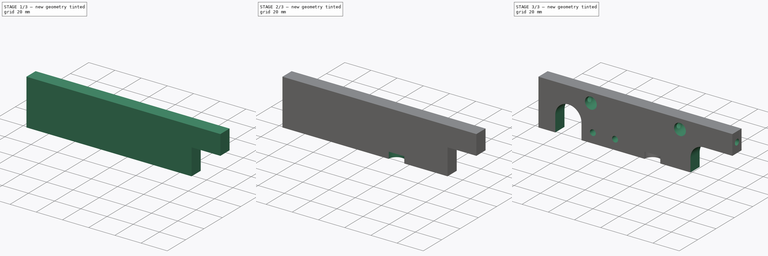
[diagram: build sequence overview — one tinted view per stage of 3, left to right]
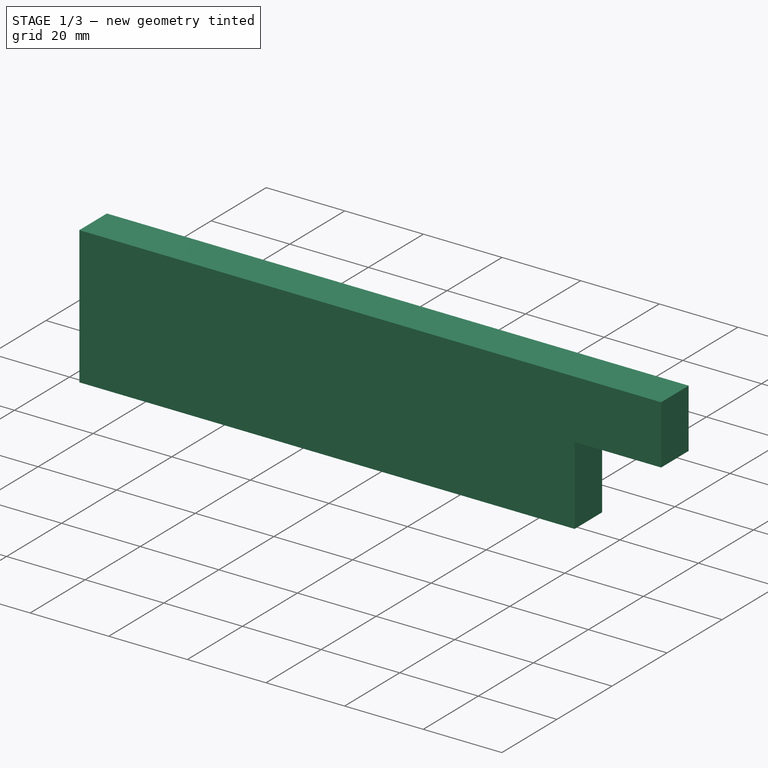
[diagram: stage 1 of 3 — iso view after this stage's code; geometry added in this stage tinted green]
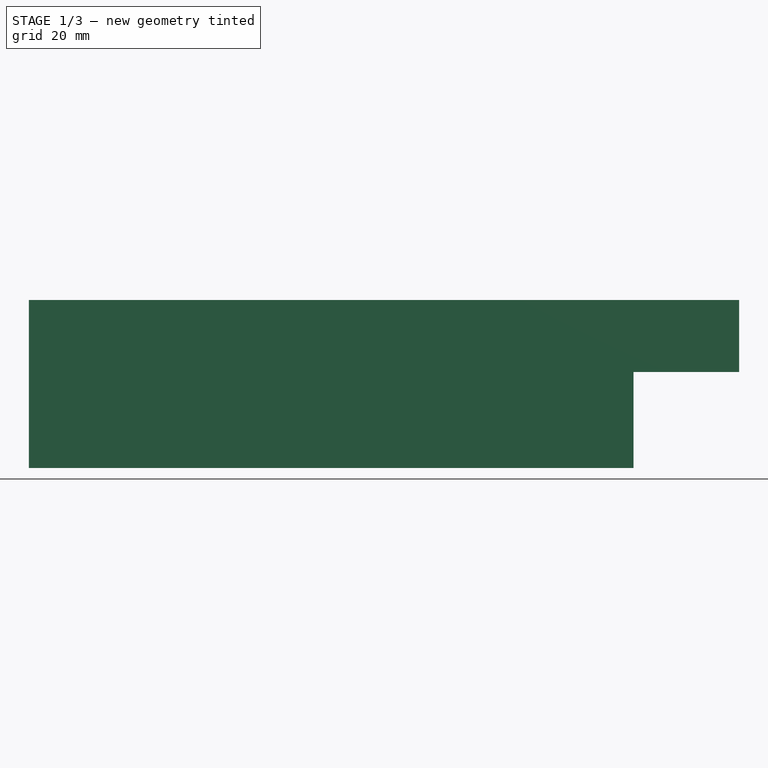
[diagram: stage 1 of 3 — front view after this stage's code; geometry added in this stage tinted green]
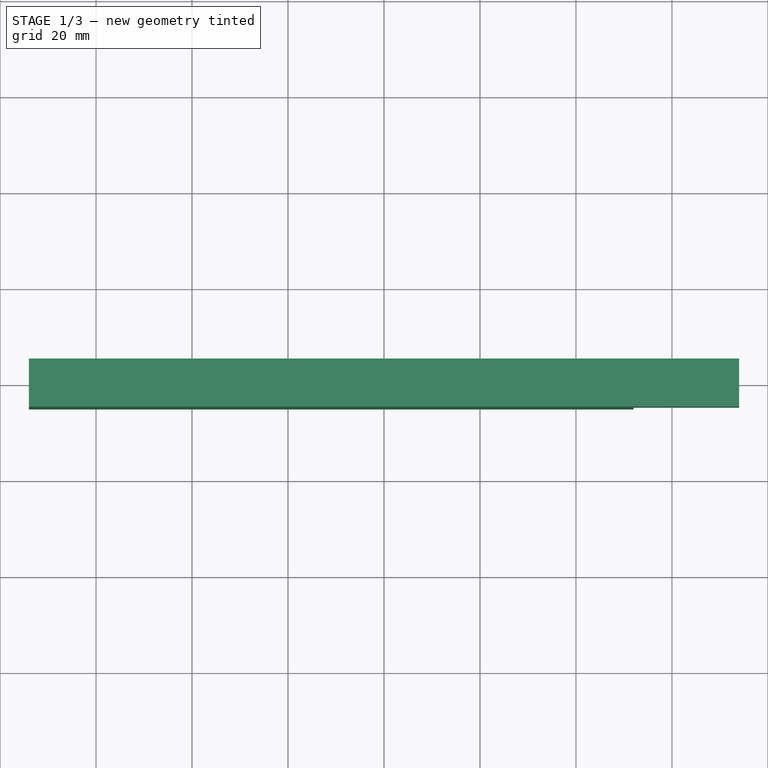
[diagram: stage 1 of 3 — top view after this stage's code; geometry added in this stage tinted green]
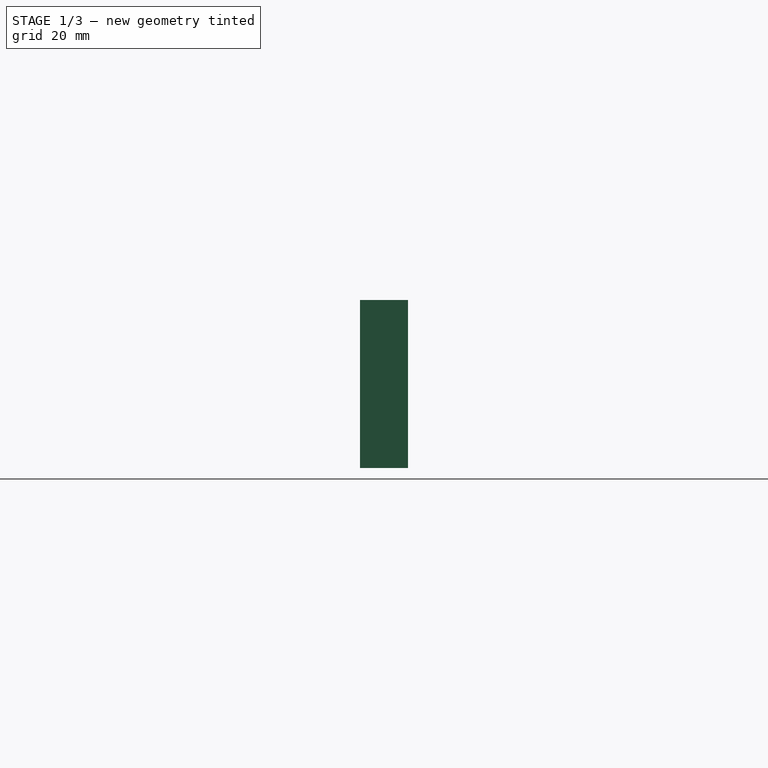
[diagram: stage 1 of 3 — right view after this stage's code; geometry added in this stage tinted green]
FCSTD DOCUMENT  (FreeCAD 0.16R6705 (Git))
Label: Tisch X-Achse - Seitenwand
License: All rights reserved
LicenseURL: http://en.wikipedia.org/wiki/All_rights_reserved
objects: Drawing::FeatureView×32, Sketcher::SketchObject×5, PartDesign::Pocket×4, Drawing::FeatureViewPart×4, Drawing::FeaturePage×2, PartDesign::Pad×1, Part::Feature×1
note: 16 computed .brp shape members not serialized (recipe doc carries the construction recipe); baked Part::Feature solids carry a one-line shape summary decoded from their .brp

FEATURE [Sketcher::SketchObject] Sketch
  sketch-geometry (4):
    g0: LineSegment StartX=-74 StartY=5 StartZ=0 EndX=74 EndY=5 EndZ=0
    g1: LineSegment StartX=74 StartY=5 StartZ=0 EndX=74 EndY=-5 EndZ=0
    g2: LineSegment StartX=74 StartY=-5 StartZ=0 EndX=-74 EndY=-5 EndZ=0
    g3: LineSegment StartX=-74 StartY=-5 StartZ=0 EndX=-74 EndY=5 EndZ=0
  constraints (12):
    c: Coincident(g0,g1)
    c: Coincident(g1,g2)
    c: Coincident(g2,g3)
    c: Coincident(g3,g0)
    c: Horizontal(g0)
    c: Horizontal(g2)
    c: Vertical(g1)
    c: Vertical(g3)
    c: DistanceY(g1) = -10
    c: DistanceX(g0) = 148
    c: Symmetric(g0,g1,g-1)
    c: Symmetric(g0,g0,g-2)
FEATURE [PartDesign::Pad] Pad
  Length = 35
  Length2 = 100
  Sketch = -> Sketch
  Type = 0
FEATURE [Sketcher::SketchObject] Sketch001
  ExternalGeometry = -> [Pad]
  Placement = pos=(0,0,0) rot=(1,0,0;3.14159rad)
  Support = -> Pad [Face5]
  sketch-geometry (8):
    g0: LineSegment [constr] StartX=-59 StartY=5 StartZ=0 EndX=-44 EndY=5 EndZ=0
    g1: LineSegment [constr] StartX=-44 StartY=5 StartZ=0 EndX=-44 EndY=-5 EndZ=0
    g2: LineSegment [constr] StartX=-44 StartY=-5 StartZ=0 EndX=-59 EndY=-5 EndZ=0
    g3: LineSegment [constr] StartX=-59 StartY=-5 StartZ=0 EndX=-59 EndY=5 EndZ=0
    g4: LineSegment StartX=74 StartY=5 StartZ=0 EndX=52 EndY=5 EndZ=0
    g5: LineSegment StartX=52 StartY=5 StartZ=0 EndX=52 EndY=-5 EndZ=0
    g6: LineSegment StartX=52 StartY=-5 StartZ=0 EndX=74 EndY=-5 EndZ=0
    g7: LineSegment StartX=74 StartY=-5 StartZ=0 EndX=74 EndY=5 EndZ=0
  constraints (23):
    c: Coincident(g0,g1)
    c: Coincident(g1,g2)
    c: Coincident(g2,g3)
    c: Coincident(g3,g0)
    c: Horizontal(g0)
    c: Horizontal(g2)
    c: Vertical(g1)
    c: Vertical(g3)
    c: PointOnObject(g1,g-3)
    c: Coincident(g4,g5)
    c: Coincident(g5,g6)
    c: Coincident(g6,g7)
    c: Coincident(g7,g4)
    c: Horizontal(g4)
    c: Horizontal(g6)
    c: Vertical(g5)
    c: Vertical(g7)
    c: PointOnObject(g5,g-3)
    c: DistanceX(g4) = -22
    c: DistanceX(g0) = 15
    c: DistanceX(g-1,g1) = -44
    c: PointOnObject(g0,g-4)
    c: Coincident(g4,g-4)
FEATURE [PartDesign::Pocket] Pocket
  Length = 20
  Sketch = -> Sketch001
  Type = 0
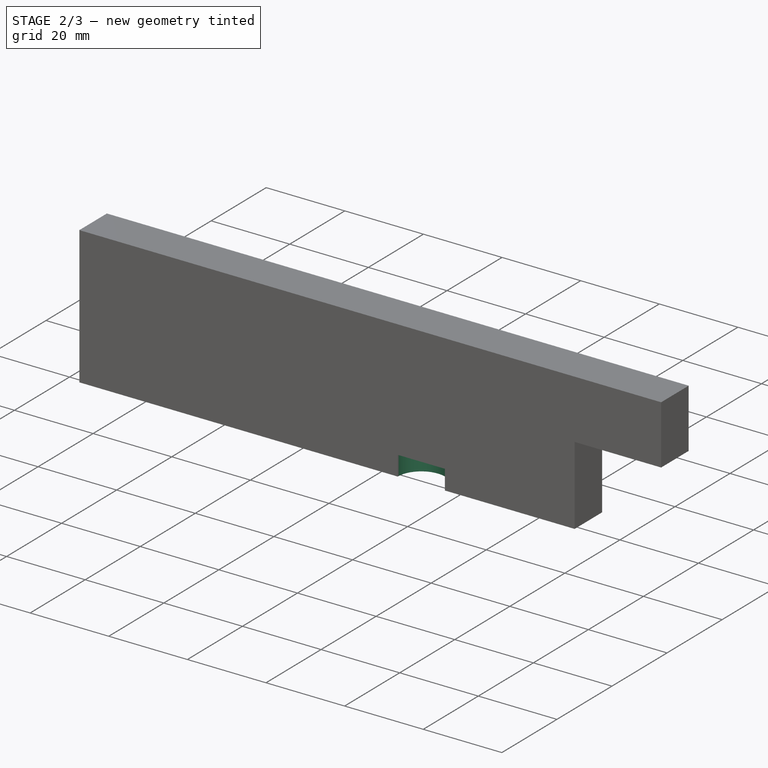
[diagram: stage 2 of 3 — iso view after this stage's code; geometry added in this stage tinted green]
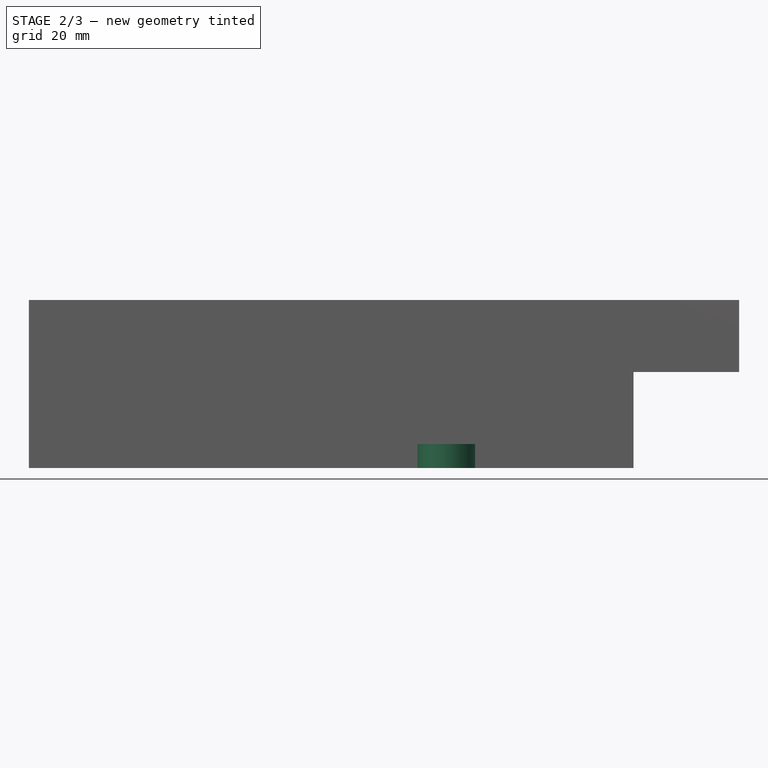
[diagram: stage 2 of 3 — front view after this stage's code; geometry added in this stage tinted green]
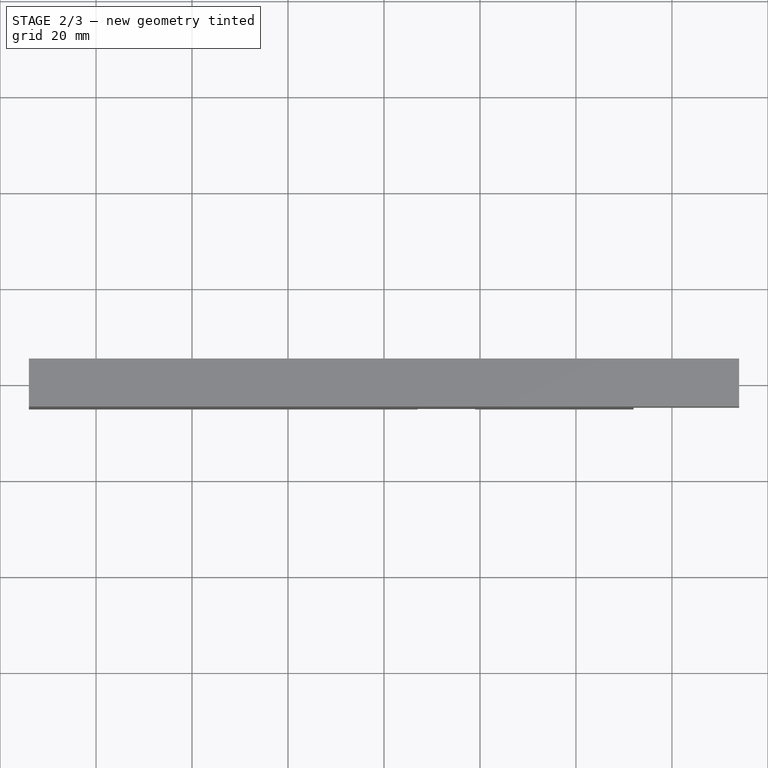
[diagram: stage 2 of 3 — top view after this stage's code; geometry added in this stage tinted green]
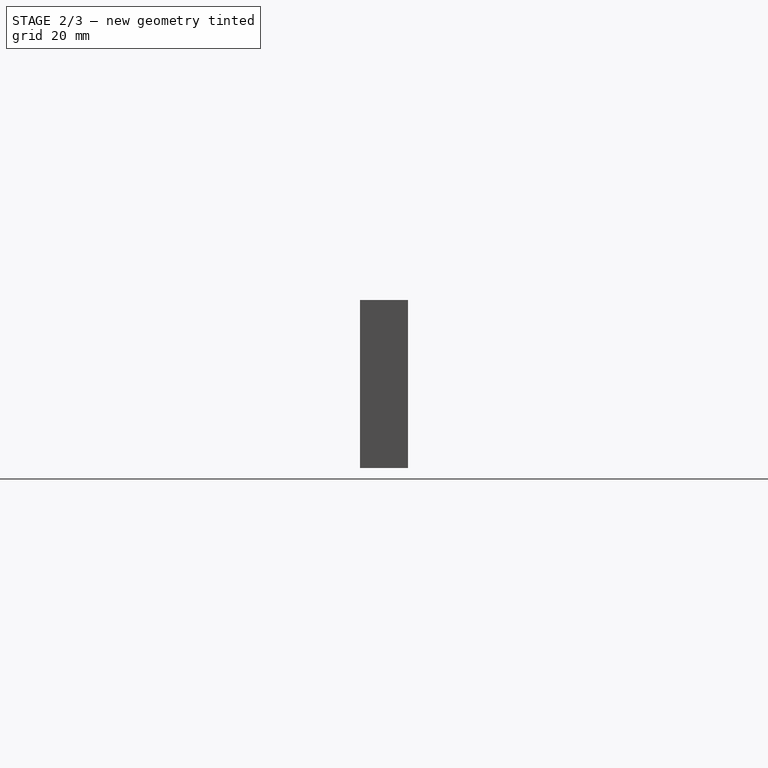
[diagram: stage 2 of 3 — right view after this stage's code; geometry added in this stage tinted green]
FEATURE [Sketcher::SketchObject] Sketch002
  ExternalGeometry = -> [Pocket]
  Placement = pos=(0,0,0) rot=(1,0,0;3.14159rad)
  Support = -> Pocket [Face2]
  sketch-geometry (1):
    g0: Circle CenterX=13 CenterY=5 CenterZ=0 NormalX=0 NormalY=0 NormalZ=1 Radius=6
  constraints (3):
    c: Radius(g0) = 6
    c: DistanceY(g-1,g0) = 5
    c: DistanceX(g0) = 13
FEATURE [PartDesign::Pocket] Pocket001
  Length = 5
  Sketch = -> Sketch002
  Type = 0
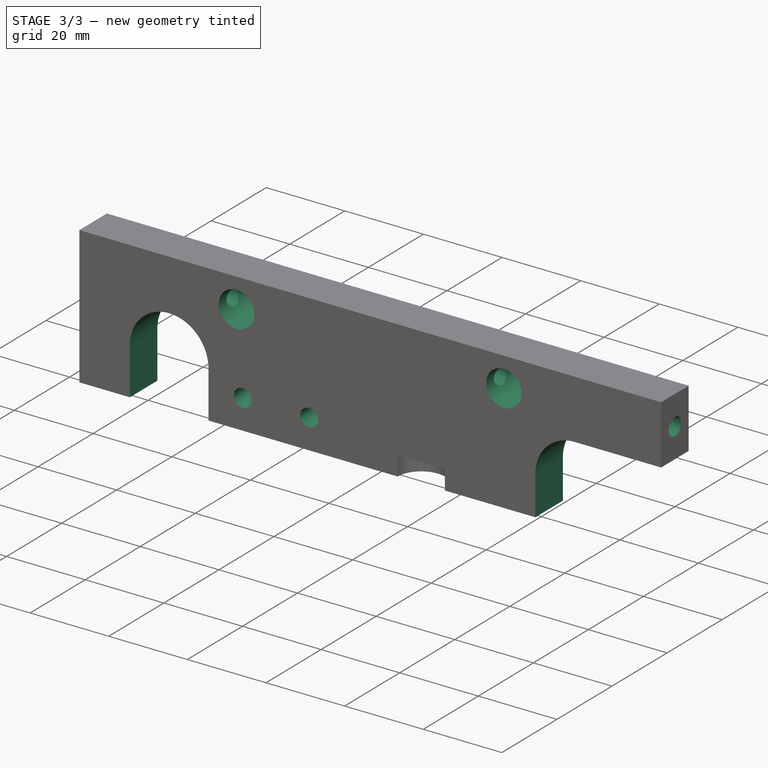
[diagram: stage 3 of 3 — iso view after this stage's code; geometry added in this stage tinted green]
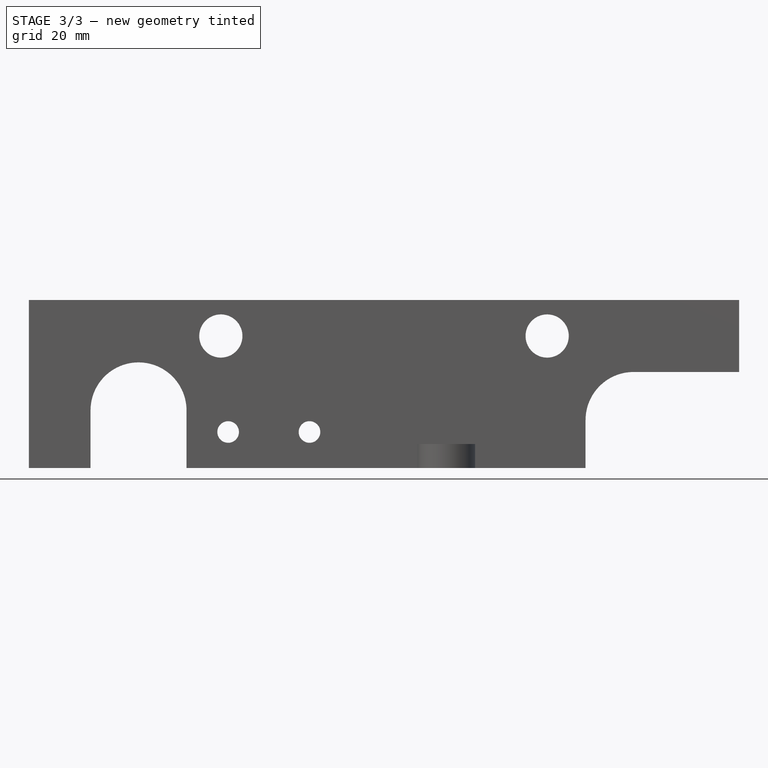
[diagram: stage 3 of 3 — front view after this stage's code; geometry added in this stage tinted green]
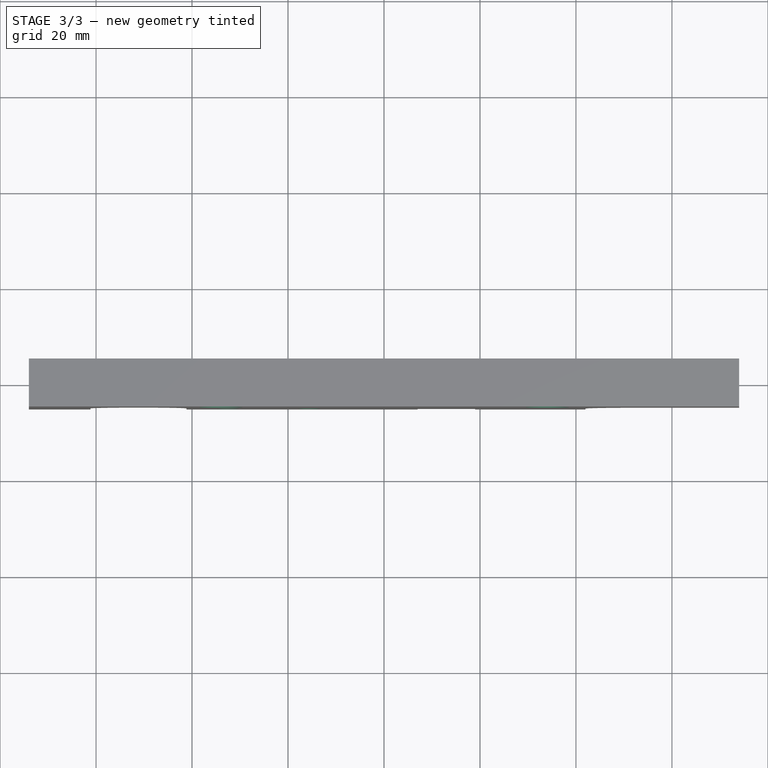
[diagram: stage 3 of 3 — top view after this stage's code; geometry added in this stage tinted green]
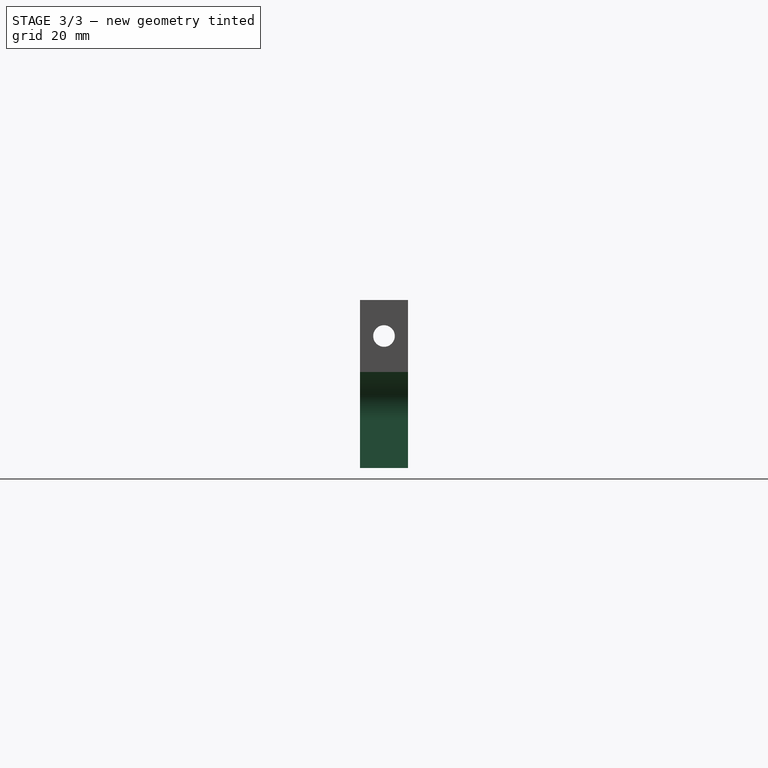
[diagram: stage 3 of 3 — right view after this stage's code; geometry added in this stage tinted green]
FEATURE [Sketcher::SketchObject] Sketch003
  ExternalGeometry = -> [Pocket001]
  Placement = pos=(0,-5,0) rot=(1,0,0;1.5708rad)
  Support = -> Pocket001 [Face8]
  sketch-geometry (19):
    g0: LineSegment [constr] StartX=-61.15 StartY=12 StartZ=0 EndX=-41.15 EndY=12 EndZ=0
    g1: LineSegment StartX=-41.15 StartY=12 StartZ=0 EndX=-41.15 EndY=0 EndZ=0
    g2: LineSegment StartX=-41.15 StartY=0 StartZ=0 EndX=-61.15 EndY=0 EndZ=0
    g3: LineSegment StartX=-61.15 StartY=0 StartZ=0 EndX=-61.15 EndY=12 EndZ=0
    g4: ArcOfCircle CenterX=-51.15 CenterY=12 CenterZ=0 NormalX=0 NormalY=0 NormalZ=1 Radius=10 StartAngle=0 EndAngle=3.14159
    g5: LineSegment [constr] StartX=52 StartY=20 StartZ=0 EndX=42 EndY=20 EndZ=0
    g6: LineSegment [constr] StartX=42 StartY=20 StartZ=0 EndX=42 EndY=0 EndZ=0
    g7: LineSegment StartX=42 StartY=0 StartZ=0 EndX=52 EndY=0 EndZ=0
    g8: LineSegment StartX=52 StartY=0 StartZ=0 EndX=52 EndY=20 EndZ=0
    g9: ArcOfCircle CenterX=52 CenterY=10 CenterZ=0 NormalX=0 NormalY=0 NormalZ=1 Radius=10 StartAngle=1.5708 EndAngle=3.14159
    g10: LineSegment StartX=42 StartY=10 StartZ=0 EndX=42 EndY=0 EndZ=0
    g11: Circle CenterX=-34 CenterY=27.5 CenterZ=0 NormalX=0 NormalY=0 NormalZ=1 Radius=4.5
    g12: Circle CenterX=34 CenterY=27.5 CenterZ=0 NormalX=0 NormalY=0 NormalZ=1 Radius=4.5
    g13: LineSegment [constr] StartX=-51.15 StartY=22 StartZ=0 EndX=-51.15 EndY=27.5 EndZ=0
    g14: LineSegment [constr] StartX=-51.15 StartY=27.5 StartZ=0 EndX=-51.15 EndY=35 EndZ=0
    g15: LineSegment [constr] StartX=-51.15 StartY=27.5 StartZ=0 EndX=34 EndY=27.5 EndZ=0
    g16: Circle CenterX=-32.475 CenterY=7.5 CenterZ=0 NormalX=0 NormalY=0 NormalZ=1 Radius=2.25
    g17: Circle CenterX=-15.525 CenterY=7.5 CenterZ=0 NormalX=0 NormalY=0 NormalZ=1 Radius=2.25
    g18: LineSegment [constr] StartX=-32.475 StartY=7.5 StartZ=0 EndX=-15.525 EndY=7.5 EndZ=0
  constraints (55):
    c: Coincident(g0,g1)
    c: Coincident(g1,g2)
    c: Coincident(g2,g3)
    c: Coincident(g3,g0)
    c: Horizontal(g0)
    c: Horizontal(g2)
    c: Vertical(g1)
    c: Vertical(g3)
    c: PointOnObject(g4,g0)
    c: Coincident(g4,g0)
    c: Coincident(g4,g0)
    c: Radius(g4) = 10
    c: DistanceY(g-3,g4) = 12
    c: DistanceX(g4,g-3) = -22.85
    c: PointOnObject(g1,g-1)
    c: Coincident(g5,g6)
    c: Coincident(g6,g7)
    c: Coincident(g7,g8)
    c: Coincident(g8,g5)
    c: Horizontal(g5)
    c: Horizontal(g7)
    c: Vertical(g6)
    c: Vertical(g8)
    c: Coincident(g5,g-4)
    c: PointOnObject(g6,g-1)
    c: DistanceX(g5) = -10
    c: PointOnObject(g9,g6)
    c: Coincident(g9,g5)
    c: Tangent(g9,g5)
    c: Tangent(g9,g6)
    c: Coincident(g10,g9)
    c: Coincident(g6,g10)
    c: Radius(g11) = 4.5
    c: Equal(g11,g12)
    c: PointOnObject(g13,g4)
    c: Vertical(g13)
    c: Coincident(g13,g14)
    c: PointOnObject(g14,g-5)
    c: Vertical(g14)
    c: PointOnObject(g4,g13)
    c: Coincident(g15,g13)
    c: Coincident(g15,g12)
    c: Horizontal(g15)
    c: PointOnObject(g11,g15)
    c: Symmetric(g-5,g-4,g15)
    c: DistanceX(g12,g-5) = 40
    c: DistanceX(g11,g-5) = -40
    c: Radius(g16) = 2.25
    c: Equal(g16,g17)
    c: Coincident(g18,g16)
    c: Coincident(g18,g17)
    c: Horizontal(g18)
    c: DistanceX(g18) = 16.95
    c: DistanceY(g-1,g17) = 7.5
    c: DistanceX(g-3,g16) = 41.525
FEATURE [PartDesign::Pocket] Pocket002
  Length = 5
  Sketch = -> Sketch003
  Type = 1
FEATURE [Part::Feature] Part__Feature001  label="ISO10642-M4x40_"
  Placement = pos=(74,0,27) rot=(0,1,0;1.5708rad)
  shape: bbox 40 x 8 x 8 mm, 17 faces (baked)
FEATURE [Sketcher::SketchObject] Sketch004
  ExternalGeometry = -> [Pocket002]
  Placement = pos=(74,0,0) rot=(0.57735,0.57735,0.57735;2.0944rad)
  Support = -> Pocket002 [Face10]
  sketch-geometry (3):
    g0: LineSegment [constr] StartX=-5 StartY=20 StartZ=0 EndX=5 EndY=35 EndZ=0
    g1: LineSegment [constr] StartX=-5 StartY=35 StartZ=0 EndX=5 EndY=20 EndZ=0
    g2: Circle CenterX=0 CenterY=27.5 CenterZ=0 NormalX=0 NormalY=0 NormalZ=1 Radius=2.25
  constraints (7):
    c: PointOnObject(g2,g1)
    c: PointOnObject(g2,g0)
    c: Radius(g2) = 2.25
    c: Coincident(g0,g-4)
    c: Coincident(g1,g-3)
    c: Coincident(g1,g-5)
    c: Coincident(g0,g-3)
FEATURE [PartDesign::Pocket] Pocket003
  Length = 5
  Sketch = -> Sketch004
  Type = 1
FEATURE [Drawing::FeatureViewPart] Ortho  label="Ortho_0_0"
  Direction = (0,-1,0)
  HiddenWidth = 0.15
  LineWidth = 0.35
  Rotation = 90
  ShowHiddenLines = false
  ShowSmoothLines = false
  Source = -> Pocket003
  Tolerance = 0.05
  ViewResult = <blob: 2593 chars omitted>
  Visible = true
  X = 148.5
  Y = 90.25
FEATURE [Drawing::FeatureViewPart] Ortho002  label="Ortho_0_-1"
  Direction = (0,0,-1)
  HiddenWidth = 0.15
  LineWidth = 0.35
  Rotation = 180
  ShowHiddenLines = false
  ShowSmoothLines = false
  Source = -> Pocket003
  Tolerance = 0.05
  ViewResult = <blob: 2193 chars omitted>
  Visible = true
  X = 148.5
  Y = 154.5
FEATURE [Drawing::FeatureView] dim001
  Rotation = 0
  ViewResult = <g> \n  <line x1="222.500000" y1="53.250000" x2="222.500000" y2="17.861087" style="stroke:rgb(0,0,255);stroke-width:0.50" />\n<line x1="74.500000" y1="53.250000" x2="74.500000" y2="17.861087" style="stroke:rgb(0,0,255);stroke-width:0.50" />\n<line x1="222.500000" y1="18.861087" x2="74.500000" y2="18.861087" style="stroke:rgb(0,0,255);stroke-width:0.50" /> \n  <polygon points="74.500000,18.861087 77.500000,19.861087 78.500000,18.861087 77.500000,17.861087" style="fill:rgb(0,0,255);stroke:rgb(0,0,255);stroke-width:0" /><polygon points="222.500000,18.861087 219.500000,17.861087 218.500000,18.861087 219.500000,19.861087" style="fill:rgb(0,0,255);stroke:rgb(0,0,255);stroke-width:0" /> \n  <text x="148.500000" y="16.861087" font-family="inherit" font-size="3.6" fill="rgb(0,0,255)" text-anchor="middle" transform="rotate(0.000000 148.500000,16.861087)" >148</text> </g>
  Visible = true
  X = 0
  Y = 0
FEATURE [Drawing::FeatureView] dim002
  Rotation = 0
  ViewResult = <g> \n  <line x1="72.500000" y1="90.250000" x2="21.318953" y2="90.250000" style="stroke:rgb(0,0,255);stroke-width:0.50" />\n<line x1="72.500000" y1="55.250000" x2="21.318953" y2="55.250000" style="stroke:rgb(0,0,255);stroke-width:0.50" />\n<line x1="22.318953" y1="90.250000" x2="22.318953" y2="55.250000" style="stroke:rgb(0,0,255);stroke-width:0.50" /> \n  <polygon points="22.318953,55.250000 21.318953,58.250000 22.318953,59.250000 23.318953,58.250000" style="fill:rgb(0,0,255);stroke:rgb(0,0,255);stroke-width:0" /><polygon points="22.318953,90.250000 23.318953,87.250000 22.318953,86.250000 21.318953,87.250000" style="fill:rgb(0,0,255);stroke:rgb(0,0,255);stroke-width:0" /> \n  <text x="20.318953" y="72.750000" font-family="inherit" font-size="3.6" fill="rgb(0,0,255)" text-anchor="middle" transform="rotate(-90.000000 20.318953,72.750000)" >35</text> </g>
  Visible = true
  X = 0
  Y = 0
FEATURE [Drawing::FeatureView] dim003
  Rotation = 0
  ViewResult = <g> \n  <line x1="72.500000" y1="148.500000" x2="21.633304" y2="148.500000" style="stroke:rgb(0,0,255);stroke-width:0.50" />\n<line x1="72.500000" y1="160.500000" x2="21.633304" y2="160.500000" style="stroke:rgb(0,0,255);stroke-width:0.50" />\n<line x1="22.633304" y1="148.500000" x2="22.633304" y2="160.500000" style="stroke:rgb(0,0,255);stroke-width:0.50" /> \n  <polygon points="22.633304,160.500000 23.633304,157.500000 22.633304,156.500000 21.633304,157.500000" style="fill:rgb(0,0,255);stroke:rgb(0,0,255);stroke-width:0" /><polygon points="22.633304,148.500000 21.633304,151.500000 22.633304,152.500000 23.633304,151.500000" style="fill:rgb(0,0,255);stroke:rgb(0,0,255);stroke-width:0" /> \n  <text x="20.633304" y="154.500000" font-family="inherit" font-size="3.6" fill="rgb(0,0,255)" text-anchor="middle" transform="rotate(-90.000000 20.633304,154.500000)" >12</text> </g>
  Visible = true
  X = 0
  Y = 0
FEATURE [Drawing::FeatureView] dim004
  Rotation = 0
  ViewResult = <g> \n  <line x1="74.500000" y1="146.500000" x2="74.500000" y2="128.512797" style="stroke:rgb(0,0,255);stroke-width:0.50" />\n<line x1="161.500000" y1="146.500000" x2="161.500000" y2="128.512797" style="stroke:rgb(0,0,255);stroke-width:0.50" />\n<line x1="74.500000" y1="129.512797" x2="161.500000" y2="129.512797" style="stroke:rgb(0,0,255);stroke-width:0.50" /> \n  <polygon points="161.500000,129.512797 158.500000,128.512797 157.500000,129.512797 158.500000,130.512797" style="fill:rgb(0,0,255);stroke:rgb(0,0,255);stroke-width:0" /><polygon points="74.500000,129.512797 77.500000,130.512797 78.500000,129.512797 77.500000,128.512797" style="fill:rgb(0,0,255);stroke:rgb(0,0,255);stroke-width:0" /> \n  <text x="118.000000" y="127.512797" font-family="inherit" font-size="3.6" fill="rgb(0,0,255)" text-anchor="middle" transform="rotate(0.000000 118.000000,127.512797)" >87</text> </g>
  Visible = true
  X = 0
  Y = 0
FEATURE [Drawing::FeatureView] dim005
  Rotation = 0
  ViewResult = <g>  <circle cx ="114.500000" cy ="62.750000" r="0.250000" stroke="none" fill="rgb(0,0,255)" /> \n<line x1="120.710957" y1="68.214265" x2="111.121418" y2="59.777597" style="stroke:rgb(0,0,255);stroke-width:0.50" />\n<polygon points="117.878582,65.722403 116.286728,62.990005 114.875398,63.080267 114.965660,64.491597" style="fill:rgb(0,0,255);stroke:rgb(0,0,255);stroke-width:0" />\n<polygon points="111.121418,59.777597 112.713272,62.509995 114.124602,62.419733 114.034340,61.008403" style="fill:rgb(0,0,255);stroke:rgb(0,0,255);stroke-width:0" />\n<line x1="120.710957" y1="68.214265" x2="127.626689" y2="68.214265" style="stroke:rgb(0,0,255);stroke-width:0.50" />\n<text x="124.168823" y="66.214265" font-family="inherit" font-size="3.6" fill="rgb(0,0,255)" text-anchor="middle" transform="rotate(0.000000 124.168823,66.214265)" >Ø9</text> </g>
  Visible = true
  X = 0
  Y = 0
FEATURE [Drawing::FeatureView] dim006
  Rotation = 0
  ViewResult = <g>  <circle cx ="182.500000" cy ="62.750000" r="0.250000" stroke="none" fill="rgb(0,0,255)" /> \n<line x1="187.667816" y1="67.899913" x2="179.312503" y2="59.573545" style="stroke:rgb(0,0,255);stroke-width:0.50" />\n<polygon points="185.687497,65.926455 184.268378,63.100486 182.854166,63.102939 182.856620,64.517151" style="fill:rgb(0,0,255);stroke:rgb(0,0,255);stroke-width:0" />\n<polygon points="179.312503,59.573545 180.731622,62.399514 182.145834,62.397061 182.143380,60.982849" style="fill:rgb(0,0,255);stroke:rgb(0,0,255);stroke-width:0" />\n<line x1="187.667816" y1="67.899913" x2="193.640493" y2="67.899913" style="stroke:rgb(0,0,255);stroke-width:0.50" />\n<text x="190.654154" y="65.899913" font-family="inherit" font-size="3.6" fill="rgb(0,0,255)" text-anchor="middle" transform="rotate(0.000000 190.654154,65.899913)" >Ø9</text> </g>
  Visible = true
  X = 0
  Y = 0
FEATURE [Drawing::FeatureView] dim007
  Rotation = 0
  ViewResult = <g>  <circle cx ="200.500000" cy ="80.250000" r="0.250000" stroke="none" fill="rgb(0,0,255)" /> \n<line x1="195.212250" y1="76.387402" x2="208.575022" y2="86.148646" style="stroke:rgb(0,0,255);stroke-width:0.50" />\n<polygon points="192.424978,74.351354 194.257620,76.928450 195.654987,76.710813 195.437349,75.313446" style="fill:rgb(0,0,255);stroke:rgb(0,0,255);stroke-width:0" />\n<polygon points="208.575022,86.148646 206.742380,83.571550 205.345013,83.789187 205.562651,85.186554" style="fill:rgb(0,0,255);stroke:rgb(0,0,255);stroke-width:0" />\n<line x1="195.212250" y1="76.387402" x2="172.578946" y2="76.387402" style="stroke:rgb(0,0,255);stroke-width:0.50" />\n<text x="183.895598" y="74.387402" font-family="inherit" font-size="3.6" fill="rgb(0,0,255)" text-anchor="middle" transform="rotate(0.000000 183.895598,74.387402)" >Ø20</text> </g>
  Visible = true
  X = 0
  Y = 0
FEATURE [Drawing::FeatureView] dim008
  Rotation = 0
  ViewResult = <g>  <circle cx ="97.350000" cy ="78.250000" r="0.250000" stroke="none" fill="rgb(0,0,255)" /> \n<line x1="85.189243" y1="63.184641" x2="103.631052" y2="86.031284" style="stroke:rgb(0,0,255);stroke-width:0.50" />\n<polygon points="91.068948,70.468716 92.175135,73.431206 93.581369,73.581230 93.731392,72.174996" style="fill:rgb(0,0,255);stroke:rgb(0,0,255);stroke-width:0" />\n<polygon points="103.631052,86.031284 102.524865,83.068794 101.118631,82.918770 100.968608,84.325004" style="fill:rgb(0,0,255);stroke:rgb(0,0,255);stroke-width:0" />\n<line x1="85.189243" y1="63.184641" x2="93.676732" y2="63.184641" style="stroke:rgb(0,0,255);stroke-width:0.50" />\n<text x="89.432988" y="61.184641" font-family="inherit" font-size="3.6" fill="rgb(0,0,255)" text-anchor="middle" transform="rotate(0.000000 89.432988,61.184641)" >Ø20</text> </g>
  Visible = true
  X = 0
  Y = 0
FEATURE [Drawing::FeatureView] dim009
  Rotation = 0
  ViewResult = <g>  <circle cx ="161.500000" cy ="148.500000" r="0.250000" stroke="none" fill="rgb(0,0,255)" /> \n<line x1="167.863674" y1="154.975265" x2="157.294393" y2="144.220646" style="stroke:rgb(0,0,255);stroke-width:0.50" />\n<polygon points="165.705607,152.779354 164.316029,149.938743 162.901869,149.926452 162.889578,151.340612" style="fill:rgb(0,0,255);stroke:rgb(0,0,255);stroke-width:0" />\n<polygon points="157.294393,144.220646 158.683971,147.061257 160.098131,147.073549 160.110422,145.659389" style="fill:rgb(0,0,255);stroke:rgb(0,0,255);stroke-width:0" />\n<line x1="167.863674" y1="154.975265" x2="183.581247" y2="154.975265" style="stroke:rgb(0,0,255);stroke-width:0.50" />\n<text x="175.722461" y="152.975265" font-family="inherit" font-size="3.6" fill="rgb(0,0,255)" text-anchor="middle" transform="rotate(0.000000 175.722461,152.975265)" >Ø12</text> </g>
  Visible = true
  X = 0
  Y = 0
FEATURE [Drawing::FeatureView] centerLines001
  Rotation = 0
  ViewResult = <g transform="scale(1.000000,1.000000)" stroke="rgb(0,0,255)"  stroke-width="0.320000" > <path d="M 114.500000,62.750000 L 114.500000,59.750000 M 114.500000,57.750000 L 114.500000,51.750000 M 114.500000,49.750000 L 114.500000,46.750000 "/>\n<path d="M 114.500000,62.750000 L 111.500000,62.750000 M 109.500000,62.750000 L 103.500000,62.750000 M 101.500000,62.750000 L 99.020707,62.750000 "/>\n<path d="M 114.500000,62.750000 L 114.500000,65.750000 M 114.500000,67.750000 L 114.500000,71.986482 "/>\n<path d="M 114.500000,62.750000 L 117.500000,62.750000 M 119.500000,62.750000 L 124.483174,62.750000 "/> </g> 
  Visible = true
  X = 0
  Y = 0
FEATURE [Drawing::FeatureView] centerLines002
  Rotation = 0
  ViewResult = <g transform="scale(1.000000,1.000000)" stroke="rgb(0,0,255)"  stroke-width="0.320000" > <path d="M 97.350000,78.250000 L 97.350000,75.250000 M 97.350000,73.250000 L 97.350000,67.250000 M 97.350000,65.250000 L 97.350000,62.250000 M 97.350000,60.250000 L 97.350000,54.250000 M 97.350000,52.250000 L 97.350000,49.667529 "/>\n<path d="M 97.350000,78.250000 L 94.350000,78.250000 M 92.350000,78.250000 L 86.350000,78.250000 M 84.350000,78.250000 L 81.350000,78.250000 M 79.350000,78.250000 L 77.644808,78.250000 "/>\n<path d="M 97.350000,78.250000 L 97.350000,81.250000 M 97.350000,83.250000 L 97.350000,89.250000 "/>\n<path d="M 97.350000,78.250000 L 100.350000,78.250000 M 102.350000,78.250000 L 108.350000,78.250000 M 110.350000,78.250000 L 113.350000,78.250000 M 115.350000,78.250000 L 118.510497,78.250000 "/> </g> 
  Visible = true
  X = 0
  Y = 0
FEATURE [Drawing::FeatureView] centerLines003
  Rotation = 0
  ViewResult = <g transform="scale(1.000000,1.000000)" stroke="rgb(0,0,255)"  stroke-width="0.320000" > <path d="M 182.500000,62.750000 L 182.500000,59.750000 M 182.500000,57.750000 L 182.500000,52.811044 "/>\n<path d="M 182.500000,62.750000 L 185.500000,62.750000 M 187.500000,62.750000 L 193.500000,62.750000 M 195.500000,62.750000 L 197.412711,62.750000 "/>\n<path d="M 182.500000,62.750000 L 182.500000,65.750000 M 182.500000,67.750000 L 182.500000,71.672131 "/>\n<path d="M 182.500000,62.750000 L 179.500000,62.750000 M 177.500000,62.750000 L 171.500000,62.750000 M 169.500000,62.750000 L 167.234971,62.750000 "/> </g> 
  Visible = true
  X = 0
  Y = 0
FEATURE [Drawing::FeatureView] centerLines004
  Rotation = 0
  ViewResult = <g transform="scale(1.000000,1.000000)" stroke="rgb(0,0,255)"  stroke-width="0.320000" > <path d="M 200.500000,80.250000 L 200.500000,77.250000 M 200.500000,75.250000 L 200.500000,69.250000 M 200.500000,67.250000 L 200.500000,64.250000 "/>\n<path d="M 200.500000,80.250000 L 197.500000,80.250000 M 195.500000,80.250000 L 189.500000,80.250000 M 187.500000,80.250000 L 184.500000,80.250000 "/>\n<path d="M 200.500000,80.250000 L 200.500000,83.250000 M 200.500000,85.250000 L 200.500000,91.250000 M 200.500000,93.250000 L 200.500000,93.362381 "/>\n<path d="M 200.500000,80.250000 L 203.500000,80.250000 M 205.500000,80.250000 L 211.500000,80.250000 M 213.500000,80.250000 L 216.500000,80.250000 "/> </g> 
  Visible = true
  X = 0
  Y = 0
FEATURE [Drawing::FeatureView] centerLines005
  Rotation = 0
  ViewResult = <g transform="scale(1.000000,1.000000)" stroke="rgb(0,0,255)"  stroke-width="0.320000" > <path d="M 161.500000,148.500000 L 161.500000,151.500000 M 161.500000,153.500000 L 161.500000,158.747482 "/>\n<path d="M 161.500000,148.500000 L 164.500000,148.500000 "/>\n<path d="M 161.500000,148.500000 L 161.500000,145.500000 M 161.500000,143.500000 L 161.500000,137.500000 "/>\n<path d="M 161.500000,148.500000 L 158.500000,148.500000 "/> </g> 
  Visible = true
  X = 0
  Y = 0
FEATURE [Drawing::FeatureView] dim010
  Rotation = 0
  ViewResult = <g> \n  <line x1="87.350000" y1="92.250000" x2="87.350000" y2="106.307736" style="stroke:rgb(0,0,255);stroke-width:0.50" />\n<line x1="74.500000" y1="92.250000" x2="74.500000" y2="106.307736" style="stroke:rgb(0,0,255);stroke-width:0.50" />\n<line x1="87.350000" y1="105.307736" x2="74.500000" y2="105.307736" style="stroke:rgb(0,0,255);stroke-width:0.50" /> \n  <polygon points="74.500000,105.307736 77.500000,106.307736 78.500000,105.307736 77.500000,104.307736" style="fill:rgb(0,0,255);stroke:rgb(0,0,255);stroke-width:0" /><polygon points="87.350000,105.307736 84.350000,104.307736 83.350000,105.307736 84.350000,106.307736" style="fill:rgb(0,0,255);stroke:rgb(0,0,255);stroke-width:0" /> \n  <text x="80.925000" y="103.307736" font-family="inherit" font-size="3.6" fill="rgb(0,0,255)" text-anchor="middle" transform="rotate(0.000000 80.925000,103.307736)" >12.85</text> </g>
  Visible = true
  X = 0
  Y = 0
FEATURE [Drawing::FeatureView] dim011
  Rotation = 0
  ViewResult = <g> \n  <line x1="87.350000" y1="92.250000" x2="87.350000" y2="106.622087" style="stroke:rgb(0,0,255);stroke-width:0.50" />\n<line x1="107.350000" y1="92.250000" x2="107.350000" y2="106.622087" style="stroke:rgb(0,0,255);stroke-width:0.50" />\n<line x1="87.350000" y1="105.622087" x2="107.350000" y2="105.622087" style="stroke:rgb(0,0,255);stroke-width:0.50" /> \n  <polygon points="107.350000,105.622087 104.350000,104.622087 103.350000,105.622087 104.350000,106.622087" style="fill:rgb(0,0,255);stroke:rgb(0,0,255);stroke-width:0" /><polygon points="87.350000,105.622087 90.350000,106.622087 91.350000,105.622087 90.350000,104.622087" style="fill:rgb(0,0,255);stroke:rgb(0,0,255);stroke-width:0" /> \n  <text x="97.350000" y="103.622087" font-family="inherit" font-size="3.6" fill="rgb(0,0,255)" text-anchor="middle" transform="rotate(0.000000 97.350000,103.622087)" >20</text> </g>
  Visible = true
  X = 0
  Y = 0
FEATURE [Drawing::FeatureView] dim012
  Rotation = 0
  ViewResult = <g> \n  <line x1="224.500000" y1="70.250000" x2="242.107562" y2="70.250000" style="stroke:rgb(0,0,255);stroke-width:0.50" />\n<line x1="224.500000" y1="55.250000" x2="242.107562" y2="55.250000" style="stroke:rgb(0,0,255);stroke-width:0.50" />\n<line x1="241.107562" y1="70.250000" x2="241.107562" y2="55.250000" style="stroke:rgb(0,0,255);stroke-width:0.50" /> \n  <polygon points="241.107562,55.250000 240.107562,58.250000 241.107562,59.250000 242.107562,58.250000" style="fill:rgb(0,0,255);stroke:rgb(0,0,255);stroke-width:0" /><polygon points="241.107562,70.250000 242.107562,67.250000 241.107562,66.250000 240.107562,67.250000" style="fill:rgb(0,0,255);stroke:rgb(0,0,255);stroke-width:0" /> \n  <text x="239.107562" y="62.750000" font-family="inherit" font-size="3.6" fill="rgb(0,0,255)" text-anchor="middle" transform="rotate(-90.000000 239.107562,62.750000)" >15</text> </g>
  Visible = true
  X = 0
  Y = 0
FEATURE [Drawing::FeatureViewPart] Ortho003  label="Ortho_0_001"
  Direction = (1,0,0)
  HiddenWidth = 0.15
  LineWidth = 0.35
  Rotation = -90
  Scale = 1.5
  ShowHiddenLines = true
  ShowSmoothLines = false
  Source = -> Pocket003
  Tolerance = 0.05
  ViewResult = <blob: 16366 chars omitted>
  Visible = true
  X = 28
  Y = 131.25
FEATURE [Drawing::FeatureViewPart] Ortho004  label="Ortho_1_0"
  Direction = (0,1,0)
  HiddenWidth = 0.15
  LineWidth = 0.35
  Rotation = -90
  Scale = 1.5
  ShowHiddenLines = true
  ShowSmoothLines = false
  Source = -> Pocket003
  Tolerance = 0.05
  ViewResult = <blob: 7715 chars omitted>
  Visible = true
  X = 167
  Y = 131.25
FEATURE [Drawing::FeatureView] dim013
  Rotation = 0
  ViewResult = <g> \n  <line x1="26.000000" y1="90.000000" x2="3.782705" y2="90.000000" style="stroke:rgb(0,0,255);stroke-width:0.50" />\n<line x1="35.000000" y1="78.750000" x2="3.782705" y2="78.750000" style="stroke:rgb(0,0,255);stroke-width:0.50" />\n<line x1="4.782705" y1="90.000000" x2="4.782705" y2="78.750000" style="stroke:rgb(0,0,255);stroke-width:0.50" /> \n  <polygon points="4.782705,78.750000 3.782705,81.750000 4.782705,82.750000 5.782705,81.750000" style="fill:rgb(0,0,255);stroke:rgb(0,0,255);stroke-width:0" /><polygon points="4.782705,90.000000 5.782705,87.000000 4.782705,86.000000 3.782705,87.000000" style="fill:rgb(0,0,255);stroke:rgb(0,0,255);stroke-width:0" /> \n  <text x="8.953224" y="84.022562" font-family="inherit" font-size="3.6" fill="rgb(0,0,255)" text-anchor="middle" transform="rotate(-90.000000 8.953224,84.022562)" >7.5</text> </g>
  Visible = true
  X = 0
  Y = 0
FEATURE [Drawing::FeatureView] dim014
  Rotation = 0
  ViewResult = <g> \n  <line x1="28.000000" y1="88.000000" x2="28.000000" y2="52.417944" style="stroke:rgb(0,0,255);stroke-width:0.50" />\n<line x1="19.000000" y1="76.750000" x2="19.000000" y2="52.417944" style="stroke:rgb(0,0,255);stroke-width:0.50" />\n<line x1="28.000000" y1="53.417944" x2="19.000000" y2="53.417944" style="stroke:rgb(0,0,255);stroke-width:0.50" /> \n  <polygon points="19.000000,53.417944 16.000000,52.417944 15.000000,53.417944 16.000000,54.417944" style="fill:rgb(0,0,255);stroke:rgb(0,0,255);stroke-width:0" /><polygon points="28.000000,53.417944 31.000000,54.417944 32.000000,53.417944 31.000000,52.417944" style="fill:rgb(0,0,255);stroke:rgb(0,0,255);stroke-width:0" /> \n  <text x="23.500000" y="51.417944" font-family="inherit" font-size="3.6" fill="rgb(0,0,255)" text-anchor="middle" transform="rotate(0.000000 23.500000,51.417944)" >6</text> </g>
  Visible = true
  X = 0
  Y = 0
FEATURE [Drawing::FeatureView] dim015
  Rotation = 0
  ViewResult = <g> \n  <line x1="56.000000" y1="76.750000" x2="56.000000" y2="56.162890" style="stroke:rgb(0,0,255);stroke-width:0.50" />\n<line x1="116.000000" y1="88.000000" x2="116.000000" y2="56.162890" style="stroke:rgb(0,0,255);stroke-width:0.50" />\n<line x1="56.000000" y1="57.162890" x2="116.000000" y2="57.162890" style="stroke:rgb(0,0,255);stroke-width:0.50" /> \n  <polygon points="116.000000,57.162890 113.000000,56.162890 112.000000,57.162890 113.000000,58.162890" style="fill:rgb(0,0,255);stroke:rgb(0,0,255);stroke-width:0" /><polygon points="56.000000,57.162890 59.000000,58.162890 60.000000,57.162890 59.000000,56.162890" style="fill:rgb(0,0,255);stroke:rgb(0,0,255);stroke-width:0" /> \n  <text x="86.000000" y="55.162890" font-family="inherit" font-size="3.6" fill="rgb(0,0,255)" text-anchor="middle" transform="rotate(0.000000 86.000000,55.162890)" >40</text> </g>
  Visible = true
  X = 0
  Y = 0
FEATURE [Drawing::FeatureView] dim016
  Rotation = 0
  ViewResult = <g> \n  <line x1="218.000000" y1="88.000000" x2="218.000000" y2="55.129826" style="stroke:rgb(0,0,255);stroke-width:0.50" />\n<line x1="278.000000" y1="76.750000" x2="278.000000" y2="55.129826" style="stroke:rgb(0,0,255);stroke-width:0.50" />\n<line x1="218.000000" y1="56.129826" x2="278.000000" y2="56.129826" style="stroke:rgb(0,0,255);stroke-width:0.50" /> \n  <polygon points="278.000000,56.129826 275.000000,55.129826 274.000000,56.129826 275.000000,57.129826" style="fill:rgb(0,0,255);stroke:rgb(0,0,255);stroke-width:0" /><polygon points="218.000000,56.129826 221.000000,57.129826 222.000000,56.129826 221.000000,55.129826" style="fill:rgb(0,0,255);stroke:rgb(0,0,255);stroke-width:0" /> \n  <text x="248.000000" y="54.129826" font-family="inherit" font-size="3.6" fill="rgb(0,0,255)" text-anchor="middle" transform="rotate(0.000000 248.000000,54.129826)" >40</text> </g>
  Visible = true
  X = 0
  Y = 0
FEATURE [Drawing::FeatureView] centerLines006
  Rotation = 0
  ViewResult = <g transform="scale(1.500000,1.500000)" stroke="rgb(0,0,255)"  stroke-width="0.213333" > <path d="M 37.333333,67.500000 L 39.333333,67.500000 M 40.666667,67.500000 L 44.666667,67.500000 M 46.000000,67.500000 L 48.000000,67.500000 M 49.333333,67.500000 L 53.333333,67.500000 M 54.666667,67.500000 L 56.666667,67.500000 M 58.000000,67.500000 L 62.000000,67.500000 M 63.333333,67.500000 L 65.333333,67.500000 M 66.666667,67.500000 L 70.666667,67.500000 M 72.000000,67.500000 L 74.000000,67.500000 M 75.333333,67.500000 L 79.333333,67.500000 M 80.666667,67.500000 L 82.666667,67.500000 M 84.000000,67.500000 L 88.000000,67.500000 M 89.333333,67.500000 L 91.333333,67.500000 M 92.666667,67.500000 L 96.666667,67.500000 M 98.000000,67.500000 L 100.000000,67.500000 M 101.333333,67.500000 L 105.333333,67.500000 M 106.666667,67.500000 L 108.666667,67.500000 M 110.000000,67.500000 L 114.000000,67.500000 M 115.333333,67.500000 L 117.333333,67.500000 M 118.666667,67.500000 L 122.666667,67.500000 M 124.000000,67.500000 L 126.000000,67.500000 M 127.333333,67.500000 L 131.333333,67.500000 M 132.666667,67.500000 L 134.666667,67.500000 M 136.000000,67.500000 L 140.000000,67.500000 M 141.333333,67.500000 L 143.333333,67.500000 M 144.666667,67.500000 L 148.666667,67.500000 M 150.000000,67.500000 L 152.000000,67.500000 M 153.333333,67.500000 L 157.333333,67.500000 M 158.666667,67.500000 L 160.666667,67.500000 M 162.000000,67.500000 L 166.000000,67.500000 M 167.333333,67.500000 L 169.333333,67.500000 M 170.666667,67.500000 L 174.666667,67.500000 M 176.000000,67.500000 L 178.000000,67.500000 M 179.333333,67.500000 L 183.333333,67.500000 M 184.666667,67.500000 L 186.666667,67.500000 M 188.000000,67.500000 L 192.000000,67.500000 M 193.333333,67.500000 L 195.134364,67.500000 "/>\n<path d="M 37.333333,67.500000 L 35.333333,67.500000 M 34.000000,67.500000 L 31.451068,67.500000 "/> </g> 
  Visible = true
  X = 0
  Y = 0
FEATURE [Drawing::FeatureView] dim017
  Rotation = 0
  ViewResult = <g> \n  <line x1="278.000000" y1="133.250000" x2="278.000000" y2="158.714480" style="stroke:rgb(0,0,255);stroke-width:0.50" />\n<line x1="258.725000" y1="133.250000" x2="258.725000" y2="158.714480" style="stroke:rgb(0,0,255);stroke-width:0.50" />\n<line x1="278.000000" y1="157.714480" x2="258.725000" y2="157.714480" style="stroke:rgb(0,0,255);stroke-width:0.50" /> \n  <polygon points="258.725000,157.714480 261.725000,158.714480 262.725000,157.714480 261.725000,156.714480" style="fill:rgb(0,0,255);stroke:rgb(0,0,255);stroke-width:0" /><polygon points="278.000000,157.714480 275.000000,156.714480 274.000000,157.714480 275.000000,158.714480" style="fill:rgb(0,0,255);stroke:rgb(0,0,255);stroke-width:0" /> \n  <text x="268.362500" y="155.714480" font-family="inherit" font-size="3.6" fill="rgb(0,0,255)" text-anchor="middle" transform="rotate(0.000000 268.362500,155.714480)" >12.85</text> </g>
  Visible = true
  X = 0
  Y = 0
FEATURE [Drawing::FeatureView] dim018
  Rotation = 0
  ViewResult = <g> \n  <line x1="278.000000" y1="133.250000" x2="278.000000" y2="176.181776" style="stroke:rgb(0,0,255);stroke-width:0.50" />\n<line x1="147.500000" y1="125.750000" x2="147.500000" y2="176.181776" style="stroke:rgb(0,0,255);stroke-width:0.50" />\n<line x1="278.000000" y1="175.181776" x2="147.500000" y2="175.181776" style="stroke:rgb(0,0,255);stroke-width:0.50" /> \n  <polygon points="147.500000,175.181776 150.500000,176.181776 151.500000,175.181776 150.500000,174.181776" style="fill:rgb(0,0,255);stroke:rgb(0,0,255);stroke-width:0" /><polygon points="278.000000,175.181776 275.000000,174.181776 274.000000,175.181776 275.000000,176.181776" style="fill:rgb(0,0,255);stroke:rgb(0,0,255);stroke-width:0" /> \n  <text x="212.750000" y="173.181776" font-family="inherit" font-size="3.6" fill="rgb(0,0,255)" text-anchor="middle" transform="rotate(0.000000 212.750000,173.181776)" >87</text> </g>
  Visible = true
  X = 0
  Y = 0
FEATURE [Drawing::FeatureView] dim019
  Rotation = 0
  ViewResult = <g> \n  <line x1="56.000000" y1="103.250000" x2="56.000000" y2="175.988974" style="stroke:rgb(0,0,255);stroke-width:0.50" />\n<line x1="147.500000" y1="125.750000" x2="147.500000" y2="175.988974" style="stroke:rgb(0,0,255);stroke-width:0.50" />\n<line x1="56.000000" y1="174.988974" x2="147.500000" y2="174.988974" style="stroke:rgb(0,0,255);stroke-width:0.50" /> \n  <polygon points="147.500000,174.988974 144.500000,173.988974 143.500000,174.988974 144.500000,175.988974" style="fill:rgb(0,0,255);stroke:rgb(0,0,255);stroke-width:0" /><polygon points="56.000000,174.988974 59.000000,175.988974 60.000000,174.988974 59.000000,173.988974" style="fill:rgb(0,0,255);stroke:rgb(0,0,255);stroke-width:0" /> \n  <text x="101.750000" y="172.988974" font-family="inherit" font-size="3.6" fill="rgb(0,0,255)" text-anchor="middle" transform="rotate(0.000000 101.750000,172.988974)" >61</text> </g>
  Visible = true
  X = 0
  Y = 0
FEATURE [Drawing::FeatureView] centerLines007
  Rotation = 0
  ViewResult = <g transform="scale(1.000000,1.000000)" stroke="rgb(0,0,255)"  stroke-width="0.320000" > <path d="M 116.025000,82.750000 L 116.025000,79.750000 M 116.025000,77.750000 L 116.025000,76.303802 "/>\n<path d="M 116.025000,82.750000 L 119.025000,82.750000 M 121.025000,82.750000 L 122.288212,82.750000 "/>\n<path d="M 116.025000,82.750000 L 116.025000,85.750000 M 116.025000,87.750000 L 116.025000,88.431558 "/>\n<path d="M 116.025000,82.750000 L 113.025000,82.750000 M 111.025000,82.750000 L 110.160455,82.750000 "/> </g> 
  Visible = true
  X = 0
  Y = 0
FEATURE [Drawing::FeatureView] centerLines008
  Rotation = 0
  ViewResult = <g transform="scale(1.000000,1.000000)" stroke="rgb(0,0,255)"  stroke-width="0.320000" > <path d="M 132.975000,82.750000 L 132.975000,79.750000 M 132.975000,77.750000 L 132.975000,76.303802 "/>\n<path d="M 132.975000,82.750000 L 135.975000,82.750000 M 137.975000,82.750000 L 141.995816,82.750000 "/>\n<path d="M 132.975000,82.750000 L 132.975000,85.750000 M 132.975000,87.750000 L 132.975000,88.810551 "/>\n<path d="M 132.975000,82.750000 L 129.975000,82.750000 M 127.975000,82.750000 L 127.594105,82.750000 "/> </g> 
  Visible = true
  X = 0
  Y = 0
FEATURE [Drawing::FeatureView] dim020
  Rotation = 0
  ViewResult = <g>  <circle cx ="132.975000" cy ="82.750000" r="0.250000" stroke="none" fill="rgb(0,0,255)" /> \n<line x1="138.074508" y1="86.592182" x2="131.177973" y2="81.396045" style="stroke:rgb(0,0,255);stroke-width:0.50" />\n<polygon points="134.772027,84.103955 136.566305,86.707907 137.966742,86.510986 137.769821,85.110549" style="fill:rgb(0,0,255);stroke:rgb(0,0,255);stroke-width:0" />\n<polygon points="131.177973,81.396045 129.383695,78.792093 127.983258,78.989014 128.180179,80.389451" style="fill:rgb(0,0,255);stroke:rgb(0,0,255);stroke-width:0" />\n<line x1="138.074508" y1="86.592182" x2="154.810812" y2="86.592182" style="stroke:rgb(0,0,255);stroke-width:0.50" />\n<text x="146.442660" y="84.592182" font-family="inherit" font-size="3.6" fill="rgb(0,0,255)" text-anchor="middle" transform="rotate(0.000000 146.442660,84.592182)" >Ø4.5</text> </g>
  Visible = true
  X = 0
  Y = 0
FEATURE [Drawing::FeatureView] dimText001
  Rotation = 0
  ViewResult = <g> <text x="133.708516" y="156.993809" font-family="inherit" font-size="5" fill="rgb(0,0,0)" text-anchor="inherit" transform="rotate(0.000000 133.708516,156.993809)" >5mm tief</text> </g>
  Visible = true
  X = 0
  Y = 0
FEATURE [Drawing::FeatureView] centerLines009
  Rotation = 0
  ViewResult = <g transform="scale(1.000000,1.000000)" stroke="rgb(0,0,255)"  stroke-width="0.320000" > <path d="M 190.500000,90.250000 L 193.500000,90.250000 M 195.500000,90.250000 L 201.500000,90.250000 M 203.500000,90.250000 L 206.500000,90.250000 M 208.500000,90.250000 L 214.500000,90.250000 M 216.500000,90.250000 L 219.500000,90.250000 M 221.500000,90.250000 L 227.500000,90.250000 M 229.500000,90.250000 L 232.500000,90.250000 M 234.500000,90.250000 L 240.500000,90.250000 M 242.500000,90.250000 L 245.500000,90.250000 M 247.500000,90.250000 L 253.500000,90.250000 M 255.500000,90.250000 L 258.500000,90.250000 M 260.500000,90.250000 L 266.500000,90.250000 M 268.500000,90.250000 L 271.500000,90.250000 M 273.500000,90.250000 L 279.500000,90.250000 "/>\n<path d="M 190.500000,90.250000 L 187.500000,90.250000 M 185.500000,90.250000 L 179.500000,90.250000 M 177.500000,90.250000 L 174.500000,90.250000 M 172.500000,90.250000 L 166.500000,90.250000 M 164.500000,90.250000 L 161.500000,90.250000 M 159.500000,90.250000 L 153.500000,90.250000 M 151.500000,90.250000 L 148.500000,90.250000 M 146.500000,90.250000 L 140.500000,90.250000 M 138.500000,90.250000 L 135.500000,90.250000 M 133.500000,90.250000 L 127.500000,90.250000 M 125.500000,90.250000 L 122.500000,90.250000 M 120.500000,90.250000 L 114.500000,90.250000 M 112.500000,90.250000 L 109.500000,90.250000 M 107.500000,90.250000 L 101.500000,90.250000 M 99.500000,90.250000 L 96.500000,90.250000 M 94.500000,90.250000 L 88.500000,90.250000 M 86.500000,90.250000 L 83.500000,90.250000 M 81.500000,90.250000 L 75.500000,90.250000 M 73.500000,90.250000 L 70.500000,90.250000 M 68.500000,90.250000 L 62.500000,90.250000 M 60.500000,90.250000 L 57.500000,90.250000 M 55.500000,90.250000 L 49.500000,90.250000 M 47.500000,90.250000 L 44.500000,90.250000 M 42.500000,90.250000 L 36.500000,90.250000 M 34.500000,90.250000 L 31.500000,90.250000 M 29.500000,90.250000 L 23.500000,90.250000 M 21.500000,90.250000 L 18.500000,90.250000 "/> </g> 
  Visible = true
  X = 0
  Y = 0
FEATURE [Drawing::FeatureView] centerLines010
  Rotation = 0
  ViewResult = <g transform="scale(1.000000,1.000000)" stroke="rgb(0,0,255)"  stroke-width="0.320000" > <path d="M 222.500000,70.250000 L 222.500000,73.250000 M 222.500000,75.250000 L 222.500000,81.250000 M 222.500000,83.250000 L 222.500000,86.250000 M 222.500000,88.250000 L 222.500000,94.250000 M 222.500000,96.250000 L 222.500000,99.250000 M 222.500000,101.250000 L 222.500000,107.250000 "/>\n<path d="M 222.500000,70.250000 L 222.500000,67.250000 M 222.500000,65.250000 L 222.500000,59.250000 M 222.500000,57.250000 L 222.500000,54.250000 M 222.500000,52.250000 L 222.500000,46.250000 M 222.500000,44.250000 L 222.500000,41.250000 M 222.500000,39.250000 L 222.500000,35.009401 "/> </g> 
  Visible = true
  X = 0
  Y = 0
FEATURE [Drawing::FeaturePage] Page
  Group = -> [Ortho,Ortho002,dim001,dim002,dim003,dim004,dim005,dim006,dim007,dim008,dim009,centerLines001,centerLines002,centerLines003,centerLines004,centerLines005,dim010,dim011,dim012,centerLines007,centerLines008,dim020,dimText001,centerLines009,centerLines010]
FEATURE [Drawing::FeatureView] dim021
  Rotation = 0
  ViewResult = <g>  <circle cx ="27.994007" cy ="89.999603" r="0.250000" stroke="none" fill="rgb(0,0,255)" /> \n<line x1="33.640311" y1="96.368108" x2="25.751147" y2="87.469865" style="stroke:rgb(0,0,255);stroke-width:0.50" />\n<polygon points="30.236868,92.529341 31.478825,95.437526 32.890491,95.522381 32.975345,94.110715" style="fill:rgb(0,0,255);stroke:rgb(0,0,255);stroke-width:0" />\n<polygon points="25.751147,87.469865 24.509190,84.561680 23.097524,84.476826 23.012670,85.888491" style="fill:rgb(0,0,255);stroke:rgb(0,0,255);stroke-width:0" />\n<line x1="33.640311" y1="96.368108" x2="49.322260" y2="96.368108" style="stroke:rgb(0,0,255);stroke-width:0.50" />\n<text x="41.481285" y="94.368108" font-family="inherit" font-size="3.6" fill="rgb(0,0,255)" text-anchor="middle"  >Ø4.5</text> </g>
  Visible = true
  X = 0
  Y = 0
FEATURE [Drawing::FeaturePage] Page001
  Group = -> [Ortho003,Ortho004,dim013,dim014,dim015,dim016,centerLines006,dim017,dim018,dim019,dim021]
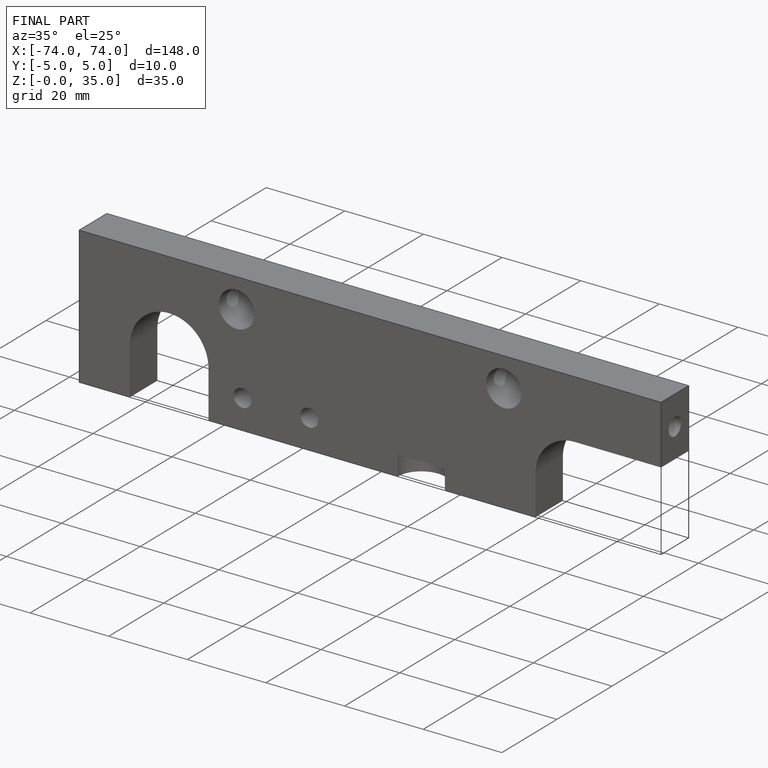
[diagram: finished part — iso view with bounding-box wireframe]
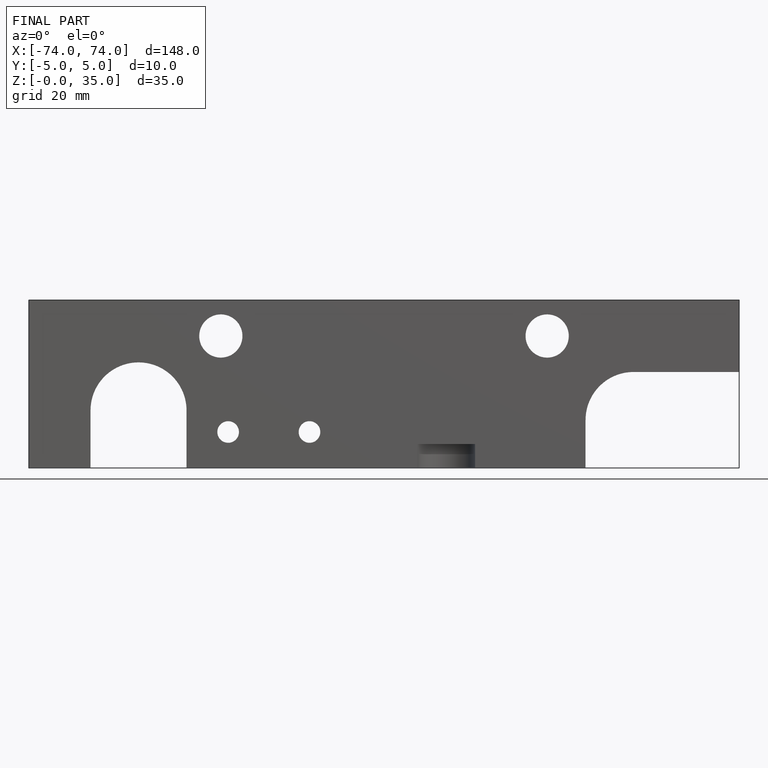
[diagram: finished part — front view with bounding-box wireframe]
